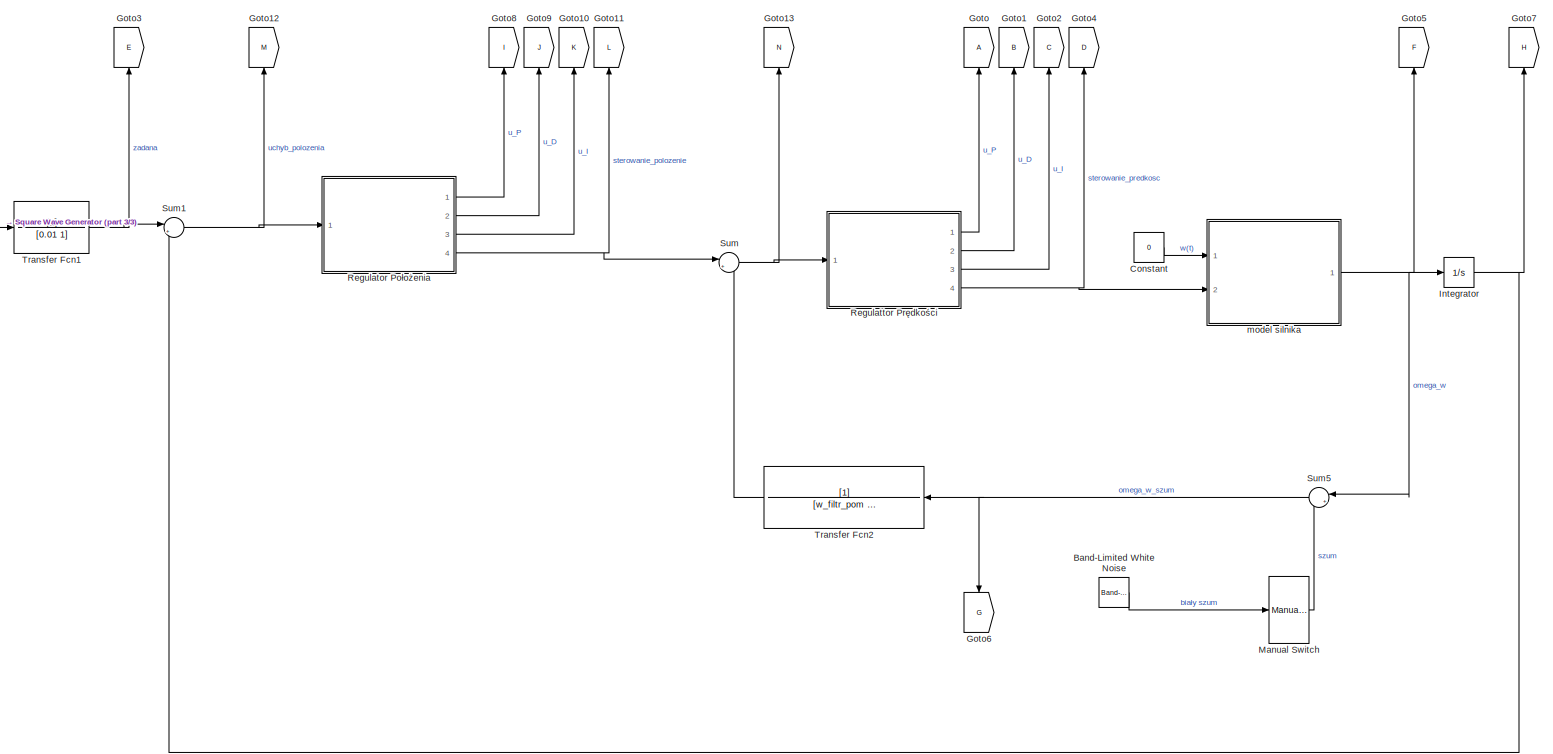
[diagram: root canvas - part 1/3, center side, full height]
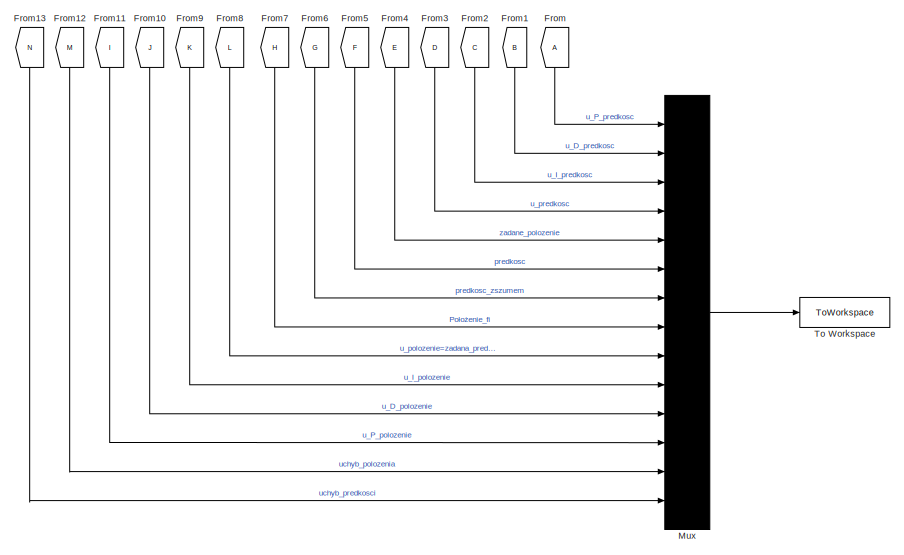
[diagram: root canvas - part 2/3, middle right region]
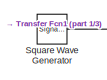
[diagram: root canvas - part 3/3, top left region]
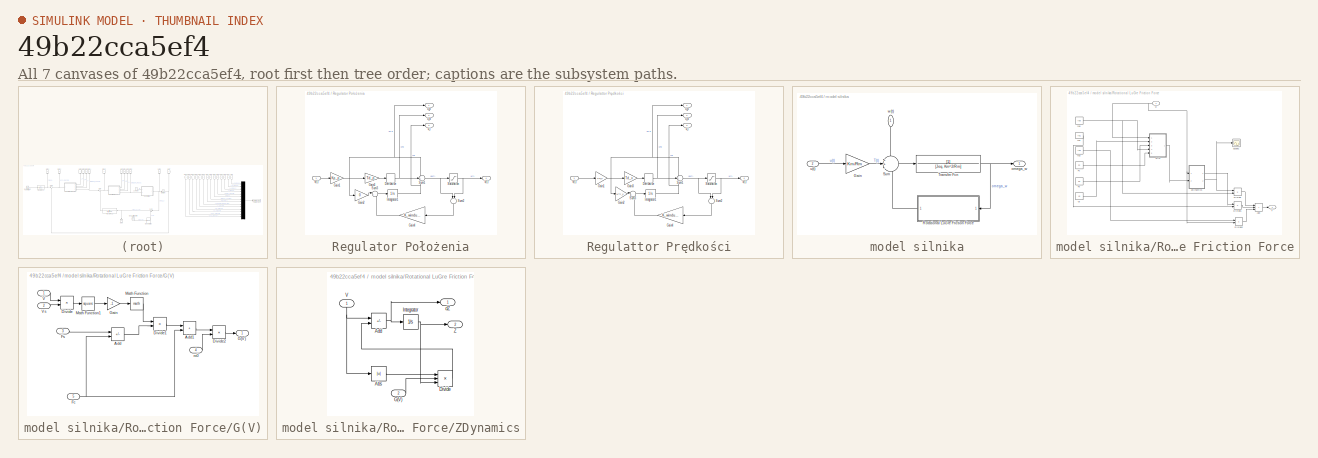
[diagram: thumbnail index - all 7 canvases of the model, root first then tree order]
MODEL slx_49b22cca5ef4
KIND model
CONFIG AbsTol = auto
CONFIG EnableMultiTasking = off
CONFIG FixedStep = auto
CONFIG MaxStep = auto
CONFIG MinStep = auto
CONFIG RelTol = 1e-3
CONFIG SampleTimeConstraint = Unconstrained
CONFIG SolverName = VariableStepAuto
CONFIG StartTime = 0.0
CONFIG StopTime = 80
BLOCK [Reference] Band-Limited White Noise  REF=simulink/Sources/Band-Limited
White Noise
  Ports = [0, 1]
  SourceBlock = simulink/Sources/Band-Limited\nWhite Noise
  SourceProductBaseCode = SL
  SourceType = Band-Limited White Noise.
BLOCK [Constant] Constant
  Value = 0
BLOCK [From] From
  NameLocation = left
BLOCK [From] From1
  GotoTag = B
  NameLocation = left
BLOCK [From] From10
  GotoTag = J
  NameLocation = left
BLOCK [From] From11
  GotoTag = I
  NameLocation = left
BLOCK [From] From12
  GotoTag = M
  NameLocation = left
BLOCK [From] From13
  GotoTag = N
  NameLocation = left
BLOCK [From] From2
  GotoTag = C
  NameLocation = left
BLOCK [From] From3
  GotoTag = D
  NameLocation = left
BLOCK [From] From4
  GotoTag = E
  NameLocation = left
BLOCK [From] From5
  GotoTag = F
  NameLocation = left
BLOCK [From] From6
  GotoTag = G
  NameLocation = left
BLOCK [From] From7
  GotoTag = H
  NameLocation = left
BLOCK [From] From8
  GotoTag = L
  NameLocation = left
BLOCK [From] From9
  GotoTag = K
  NameLocation = left
BLOCK [Goto] Goto
  NameLocation = right
BLOCK [Goto] Goto1
  GotoTag = B
  NameLocation = right
BLOCK [Goto] Goto10
  GotoTag = K
  NameLocation = right
BLOCK [Goto] Goto11
  GotoTag = L
  NameLocation = right
BLOCK [Goto] Goto12
  GotoTag = M
  NameLocation = right
BLOCK [Goto] Goto13
  GotoTag = N
  NameLocation = right
BLOCK [Goto] Goto2
  GotoTag = C
  NameLocation = right
BLOCK [Goto] Goto3
  GotoTag = E
  NameLocation = right
BLOCK [Goto] Goto4
  GotoTag = D
  NameLocation = right
BLOCK [Goto] Goto5
  GotoTag = F
  NameLocation = right
BLOCK [Goto] Goto6
  GotoTag = G
  NameLocation = left
BLOCK [Goto] Goto7
  GotoTag = H
  NameLocation = right
BLOCK [Goto] Goto8
  GotoTag = I
  NameLocation = right
BLOCK [Goto] Goto9
  GotoTag = J
  NameLocation = right
BLOCK [Integrator] Integrator
  Ports = [1, 1]
BLOCK [ManualSwitch] Manual Switch
  CurrentSetting = 0
BLOCK [Mux] Mux
  DisplayOption = bar
  Inputs = 14
  Ports = [14, 1]
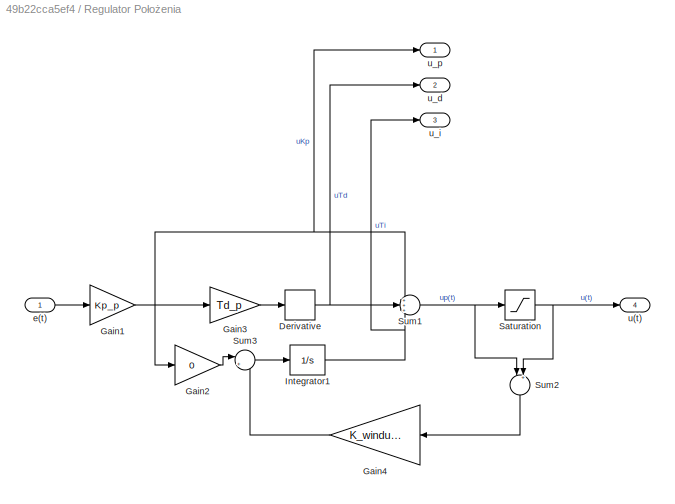
BLOCK [SubSystem] Regulator Położenia
  NameLocation = top
  Ports = [1, 4]
  RequestExecContextInheritance = off
BLOCK [Derivative] Regulator Położenia/Derivative
  CoefficientInTFapproximation = 500
BLOCK [Gain] Regulator Położenia/Gain1
  Gain = Kp_p
BLOCK [Gain] Regulator Położenia/Gain2
  Gain = 0
BLOCK [Gain] Regulator Położenia/Gain3
  Gain = Td_p
BLOCK [Gain] Regulator Położenia/Gain4
  Gain = K_windup_p
  NameLocation = top
BLOCK [Integrator] Regulator Położenia/Integrator1
  Ports = [1, 1]
BLOCK [Saturate] Regulator Położenia/Saturation
  LowerLimit = -300
  UpperLimit = 300
  ZeroCross = off
BLOCK [Sum] Regulator Położenia/Sum1
  Inputs = +++
  Ports = [3, 1]
BLOCK [Sum] Regulator Położenia/Sum2
  Inputs = |+-|
  NameLocation = left
  Ports = [2, 1]
BLOCK [Sum] Regulator Położenia/Sum3
  Inputs = |+-
  Ports = [2, 1]
BLOCK [Inport] Regulator Położenia/e(t)
BLOCK [Outport] Regulator Położenia/u(t)
  Port = 4
BLOCK [Outport] Regulator Położenia/u_d
  Port = 2
BLOCK [Outport] Regulator Położenia/u_i
  Port = 3
BLOCK [Outport] Regulator Położenia/u_p
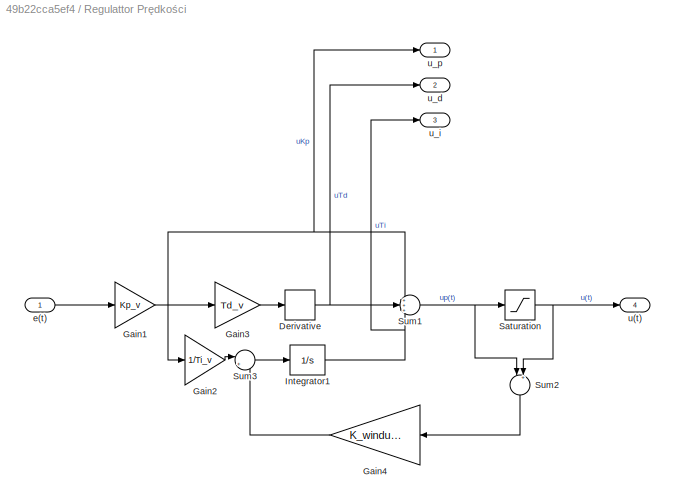
BLOCK [SubSystem] Regulattor Prędkości
  NameLocation = top
  Ports = [1, 4]
  RequestExecContextInheritance = off
BLOCK [Derivative] Regulattor Prędkości/Derivative
  CoefficientInTFapproximation = 500
BLOCK [Gain] Regulattor Prędkości/Gain1
  Gain = Kp_v
BLOCK [Gain] Regulattor Prędkości/Gain2
  Gain = 1/Ti_v
BLOCK [Gain] Regulattor Prędkości/Gain3
  Gain = Td_v
BLOCK [Gain] Regulattor Prędkości/Gain4
  Gain = K_windup_v
  NameLocation = top
BLOCK [Integrator] Regulattor Prędkości/Integrator1
  Ports = [1, 1]
BLOCK [Saturate] Regulattor Prędkości/Saturation
  LowerLimit = -10
  UpperLimit = 10
  ZeroCross = off
BLOCK [Sum] Regulattor Prędkości/Sum1
  Inputs = +++
  Ports = [3, 1]
BLOCK [Sum] Regulattor Prędkości/Sum2
  Inputs = |+-|
  NameLocation = left
  Ports = [2, 1]
BLOCK [Sum] Regulattor Prędkości/Sum3
  Inputs = |+-
  Ports = [2, 1]
BLOCK [Inport] Regulattor Prędkości/e(t)
BLOCK [Outport] Regulattor Prędkości/u(t)
  Port = 4
BLOCK [Outport] Regulattor Prędkości/u_d
  Port = 2
BLOCK [Outport] Regulattor Prędkości/u_i
  Port = 3
BLOCK [Outport] Regulattor Prędkości/u_p
BLOCK [SignalGenerator] Square Wave Generator
  Amplitude = 9
  Frequency = 0.08
  Ports = [0, 1]
  WaveForm = square
BLOCK [Sum] Sum
  Inputs = |+-
  Ports = [2, 1]
BLOCK [Sum] Sum1
  Inputs = |+-
  Ports = [2, 1]
BLOCK [Sum] Sum5
  Inputs = |++
  NameLocation = top
  Ports = [2, 1]
BLOCK [ToWorkspace] To Workspace
  FixptAsFi = on
  MaxDataPoints = inf
  Ports = [1]
  SampleTime = -1
  SaveFormat = Timeseries
  VariableName = simout
BLOCK [TransferFcn] Transfer Fcn1
  Denominator = [0.01 1]
BLOCK [TransferFcn] Transfer Fcn2
  Denominator = [w_filtr_pom 1]
  NameLocation = top
BLOCK [SubSystem] model silnika
  NameLocation = top
  Ports = [2, 1]
  RequestExecContextInheritance = off
BLOCK [Gain] model silnika/Gain
  Gain = Km/Rm
BLOCK [SubSystem] model silnika/Rotational LuGre Friction Force
  NameLocation = top
  Ports = [1, 1]
  RequestExecContextInheritance = off
  TreatAsAtomicUnit = on
BLOCK [Sum] model silnika/Rotational LuGre Friction Force/Add
  IconShape = rectangular
  Inputs = +++
  Ports = [3, 1]
BLOCK [Product] model silnika/Rotational LuGre Friction Force/Divide
  Inputs = **
  Ports = [2, 1]
BLOCK [Product] model silnika/Rotational LuGre Friction Force/Divide1
  Inputs = **
  Ports = [2, 1]
BLOCK [Product] model silnika/Rotational LuGre Friction Force/Divide2
  Inputs = **
  Ports = [2, 1]
BLOCK [Constant] model silnika/Rotational LuGre Friction Force/Fc
  Value = Fc
BLOCK [Constant] model silnika/Rotational LuGre Friction Force/Fs
  Value = Fs
BLOCK [SubSystem] model silnika/Rotational LuGre Friction Force/G(V)
  Ports = [5, 1]
  RequestExecContextInheritance = off
BLOCK [Sum] model silnika/Rotational LuGre Friction Force/G(V)/Add
  IconShape = rectangular
  Inputs = +-
  Ports = [2, 1]
BLOCK [Sum] model silnika/Rotational LuGre Friction Force/G(V)/Add1
  IconShape = rectangular
  Ports = [2, 1]
BLOCK [Product] model silnika/Rotational LuGre Friction Force/G(V)/Divide
  Inputs = */
  Ports = [2, 1]
BLOCK [Product] model silnika/Rotational LuGre Friction Force/G(V)/Divide1
  Inputs = **
  Ports = [2, 1]
BLOCK [Product] model silnika/Rotational LuGre Friction Force/G(V)/Divide2
  Inputs = */
  Ports = [2, 1]
BLOCK [Inport] model silnika/Rotational LuGre Friction Force/G(V)/Fc
  Port = 5
BLOCK [Inport] model silnika/Rotational LuGre Friction Force/G(V)/Fs
  Port = 3
BLOCK [Outport] model silnika/Rotational LuGre Friction Force/G(V)/G(V)
BLOCK [Gain] model silnika/Rotational LuGre Friction Force/G(V)/Gain
  Gain = -1
BLOCK [Math] model silnika/Rotational LuGre Friction Force/G(V)/Math Function
  Ports = [1, 1]
  SignedPower = on
BLOCK [Math] model silnika/Rotational LuGre Friction Force/G(V)/Math Function1
  Operator = square
  Ports = [1, 1]
  SignedPower = on
BLOCK [Inport] model silnika/Rotational LuGre Friction Force/G(V)/V
BLOCK [Inport] model silnika/Rotational LuGre Friction Force/G(V)/Vs
  Port = 2
BLOCK [Inport] model silnika/Rotational LuGre Friction Force/G(V)/ro0
  Port = 4
BLOCK [Scope] model silnika/Rotational LuGre Friction Force/Scope1
  Floating = off
  NumInputPorts = 1
  Ports = [1]
  ScopeSpecificationString = Simulink.scopes.TimeScopeBlockCfg('CurrentConfiguration', extmgr.ConfigurationSet(extmgr.Configuration('Core','General UI',true),extmgr.Configuration('Core','Source UI',true),extmgr.Configuration('Sources','WiredSimulink',true,'DataLoggingVariableName','ScopeData3','DataLoggingSaveFormat','StructureWithTime','DataLoggingDecimation','1','DataLoggingDecimateData',true),extmgr.Configuration('Visuals'...<+1592ch>
BLOCK [Outport] model silnika/Rotational LuGre Friction Force/T
BLOCK [Constant] model silnika/Rotational LuGre Friction Force/Vs
  Value = Vs
BLOCK [SubSystem] model silnika/Rotational LuGre Friction Force/ZDynamics
  Ports = [2, 2]
  RequestExecContextInheritance = off
BLOCK [Abs] model silnika/Rotational LuGre Friction Force/ZDynamics/Abs
  SaturateOnIntegerOverflow = off
BLOCK [Sum] model silnika/Rotational LuGre Friction Force/ZDynamics/Add
  IconShape = rectangular
  Inputs = +-
  Ports = [2, 1]
BLOCK [Product] model silnika/Rotational LuGre Friction Force/ZDynamics/Divide
  Inputs = */*
  Ports = [3, 1]
BLOCK [Inport] model silnika/Rotational LuGre Friction Force/ZDynamics/G(V)
  Port = 2
BLOCK [Integrator] model silnika/Rotational LuGre Friction Force/ZDynamics/Integrator
  Ports = [1, 1]
BLOCK [Inport] model silnika/Rotational LuGre Friction Force/ZDynamics/V
  NameLocation = right
BLOCK [Outport] model silnika/Rotational LuGre Friction Force/ZDynamics/Z
  Port = 2
BLOCK [Outport] model silnika/Rotational LuGre Friction Force/ZDynamics/dZ
BLOCK [Constant] model silnika/Rotational LuGre Friction Force/ro0
  Value = ro0
BLOCK [Constant] model silnika/Rotational LuGre Friction Force/ro1
  Value = ro1
BLOCK [Constant] model silnika/Rotational LuGre Friction Force/ro2
  Value = ro2
BLOCK [Inport] model silnika/Rotational LuGre Friction Force/w
BLOCK [Sum] model silnika/Sum
  Inputs = ++-
  Ports = [3, 1]
BLOCK [TransferFcn] model silnika/Transfer Fcn
  Denominator = [Jeq, Km^2/Rm]
BLOCK [Outport] model silnika/omega_w
BLOCK [Inport] model silnika/u(t)
  Port = 2
BLOCK [Inport] model silnika/w(t)
  NameLocation = left
LINE Band-Limited White Noise:1 -> Manual Switch:1
LINE Constant:1 -> model silnika:1
LINE From10:1 -> Mux:11
LINE From11:1 -> Mux:12
LINE From12:1 -> Mux:13
LINE From13:1 -> Mux:14
LINE From1:1 -> Mux:2
LINE From2:1 -> Mux:3
LINE From3:1 -> Mux:4
LINE From4:1 -> Mux:5
LINE From5:1 -> Mux:6
LINE From6:1 -> Mux:7
LINE From7:1 -> Mux:8
LINE From8:1 -> Mux:9
LINE From9:1 -> Mux:10
LINE From:1 -> Mux:1
NET Integrator:1 -> Goto7:1, Sum1:2
LINE Manual Switch:1 -> Sum5:2
LINE Mux:1 -> To Workspace:1
NET Regulator Położenia/Derivative:1 -> Regulator Położenia/Sum1:2, Regulator Położenia/u_d:1
NET Regulator Położenia/Gain1:1 -> Regulator Położenia/Gain2:1, Regulator Położenia/Gain3:1, Regulator Położenia/Sum1:1, Regulator Położenia/u_p:1
LINE Regulator Położenia/Gain2:1 -> Regulator Położenia/Sum3:1
LINE Regulator Położenia/Gain3:1 -> Regulator Położenia/Derivative:1
LINE Regulator Położenia/Gain4:1 -> Regulator Położenia/Sum3:2
NET Regulator Położenia/Integrator1:1 -> Regulator Położenia/Sum1:3, Regulator Położenia/u_i:1
NET Regulator Położenia/Saturation:1 -> Regulator Położenia/Sum2:2, Regulator Położenia/u(t):1
NET Regulator Położenia/Sum1:1 -> Regulator Położenia/Saturation:1, Regulator Położenia/Sum2:1
LINE Regulator Położenia/Sum2:1 -> Regulator Położenia/Gain4:1
LINE Regulator Położenia/Sum3:1 -> Regulator Położenia/Integrator1:1
LINE Regulator Położenia/e(t):1 -> Regulator Położenia/Gain1:1
LINE Regulator Położenia:1 -> Goto8:1
LINE Regulator Położenia:2 -> Goto9:1
LINE Regulator Położenia:3 -> Goto10:1
NET Regulator Położenia:4 -> Goto11:1, Sum:1
NET Regulattor Prędkości/Derivative:1 -> Regulattor Prędkości/Sum1:2, Regulattor Prędkości/u_d:1
NET Regulattor Prędkości/Gain1:1 -> Regulattor Prędkości/Gain2:1, Regulattor Prędkości/Gain3:1, Regulattor Prędkości/Sum1:1, Regulattor Prędkości/u_p:1
LINE Regulattor Prędkości/Gain2:1 -> Regulattor Prędkości/Sum3:1
LINE Regulattor Prędkości/Gain3:1 -> Regulattor Prędkości/Derivative:1
LINE Regulattor Prędkości/Gain4:1 -> Regulattor Prędkości/Sum3:2
NET Regulattor Prędkości/Integrator1:1 -> Regulattor Prędkości/Sum1:3, Regulattor Prędkości/u_i:1
NET Regulattor Prędkości/Saturation:1 -> Regulattor Prędkości/Sum2:2, Regulattor Prędkości/u(t):1
NET Regulattor Prędkości/Sum1:1 -> Regulattor Prędkości/Saturation:1, Regulattor Prędkości/Sum2:1
LINE Regulattor Prędkości/Sum2:1 -> Regulattor Prędkości/Gain4:1
LINE Regulattor Prędkości/Sum3:1 -> Regulattor Prędkości/Integrator1:1
LINE Regulattor Prędkości/e(t):1 -> Regulattor Prędkości/Gain1:1
LINE Regulattor Prędkości:1 -> Goto:1
LINE Regulattor Prędkości:2 -> Goto1:1
LINE Regulattor Prędkości:3 -> Goto2:1
NET Regulattor Prędkości:4 -> Goto4:1, model silnika:2
LINE Square Wave Generator:1 -> Transfer Fcn1:1
NET Sum1:1 -> Goto12:1, Regulator Położenia:1
NET Sum5:1 -> Goto6:1, Transfer Fcn2:1
NET Sum:1 -> Goto13:1, Regulattor Prędkości:1
NET Transfer Fcn1:1 -> Goto3:1, Sum1:1
LINE Transfer Fcn2:1 -> Sum:2
LINE model silnika/Gain:1 -> model silnika/Sum:2
LINE model silnika/Rotational LuGre Friction Force/Add:1 -> model silnika/Rotational LuGre Friction Force/T:1
LINE model silnika/Rotational LuGre Friction Force/Divide1:1 -> model silnika/Rotational LuGre Friction Force/Add:2
LINE model silnika/Rotational LuGre Friction Force/Divide2:1 -> model silnika/Rotational LuGre Friction Force/Add:3
LINE model silnika/Rotational LuGre Friction Force/Divide:1 -> model silnika/Rotational LuGre Friction Force/Add:1
LINE model silnika/Rotational LuGre Friction Force/Fc:1 -> model silnika/Rotational LuGre Friction Force/G(V):5
LINE model silnika/Rotational LuGre Friction Force/Fs:1 -> model silnika/Rotational LuGre Friction Force/G(V):3
LINE model silnika/Rotational LuGre Friction Force/G(V)/Add1:1 -> model silnika/Rotational LuGre Friction Force/G(V)/Divide2:1
LINE model silnika/Rotational LuGre Friction Force/G(V)/Add:1 -> model silnika/Rotational LuGre Friction Force/G(V)/Divide1:2
LINE model silnika/Rotational LuGre Friction Force/G(V)/Divide1:1 -> model silnika/Rotational LuGre Friction Force/G(V)/Add1:1
LINE model silnika/Rotational LuGre Friction Force/G(V)/Divide2:1 -> model silnika/Rotational LuGre Friction Force/G(V)/G(V):1
LINE model silnika/Rotational LuGre Friction Force/G(V)/Divide:1 -> model silnika/Rotational LuGre Friction Force/G(V)/Math Function1:1
NET model silnika/Rotational LuGre Friction Force/G(V)/Fc:1 -> model silnika/Rotational LuGre Friction Force/G(V)/Add1:2, model silnika/Rotational LuGre Friction Force/G(V)/Add:2
LINE model silnika/Rotational LuGre Friction Force/G(V)/Fs:1 -> model silnika/Rotational LuGre Friction Force/G(V)/Add:1
LINE model silnika/Rotational LuGre Friction Force/G(V)/Gain:1 -> model silnika/Rotational LuGre Friction Force/G(V)/Math Function:1
LINE model silnika/Rotational LuGre Friction Force/G(V)/Math Function1:1 -> model silnika/Rotational LuGre Friction Force/G(V)/Gain:1
LINE model silnika/Rotational LuGre Friction Force/G(V)/Math Function:1 -> model silnika/Rotational LuGre Friction Force/G(V)/Divide1:1
LINE model silnika/Rotational LuGre Friction Force/G(V)/V:1 -> model silnika/Rotational LuGre Friction Force/G(V)/Divide:1
LINE model silnika/Rotational LuGre Friction Force/G(V)/Vs:1 -> model silnika/Rotational LuGre Friction Force/G(V)/Divide:2
LINE model silnika/Rotational LuGre Friction Force/G(V)/ro0:1 -> model silnika/Rotational LuGre Friction Force/G(V)/Divide2:2
LINE model silnika/Rotational LuGre Friction Force/G(V):1 -> model silnika/Rotational LuGre Friction Force/ZDynamics:2
LINE model silnika/Rotational LuGre Friction Force/Vs:1 -> model silnika/Rotational LuGre Friction Force/G(V):2
LINE model silnika/Rotational LuGre Friction Force/ZDynamics/Abs:1 -> model silnika/Rotational LuGre Friction Force/ZDynamics/Divide:1
NET model silnika/Rotational LuGre Friction Force/ZDynamics/Add:1 -> model silnika/Rotational LuGre Friction Force/ZDynamics/Integrator:1, model silnika/Rotational LuGre Friction Force/ZDynamics/dZ:1
LINE model silnika/Rotational LuGre Friction Force/ZDynamics/Divide:1 -> model silnika/Rotational LuGre Friction Force/ZDynamics/Add:2
LINE model silnika/Rotational LuGre Friction Force/ZDynamics/G(V):1 -> model silnika/Rotational LuGre Friction Force/ZDynamics/Divide:2
NET model silnika/Rotational LuGre Friction Force/ZDynamics/Integrator:1 -> model silnika/Rotational LuGre Friction Force/ZDynamics/Divide:3, model silnika/Rotational LuGre Friction Force/ZDynamics/Z:1
NET model silnika/Rotational LuGre Friction Force/ZDynamics/V:1 -> model silnika/Rotational LuGre Friction Force/ZDynamics/Abs:1, model silnika/Rotational LuGre Friction Force/ZDynamics/Add:1
LINE model silnika/Rotational LuGre Friction Force/ZDynamics:1 -> model silnika/Rotational LuGre Friction Force/Divide1:1
NET model silnika/Rotational LuGre Friction Force/ZDynamics:2 -> model silnika/Rotational LuGre Friction Force/Divide:1, model silnika/Rotational LuGre Friction Force/Scope1:1
NET model silnika/Rotational LuGre Friction Force/ro0:1 -> model silnika/Rotational LuGre Friction Force/Divide:2, model silnika/Rotational LuGre Friction Force/G(V):4
LINE model silnika/Rotational LuGre Friction Force/ro1:1 -> model silnika/Rotational LuGre Friction Force/Divide1:2
LINE model silnika/Rotational LuGre Friction Force/ro2:1 -> model silnika/Rotational LuGre Friction Force/Divide2:1
NET model silnika/Rotational LuGre Friction Force/w:1 -> model silnika/Rotational LuGre Friction Force/Divide2:2, model silnika/Rotational LuGre Friction Force/G(V):1, model silnika/Rotational LuGre Friction Force/ZDynamics:1
LINE model silnika/Rotational LuGre Friction Force:1 -> model silnika/Sum:3
LINE model silnika/Sum:1 -> model silnika/Transfer Fcn:1
NET model silnika/Transfer Fcn:1 -> model silnika/Rotational LuGre Friction Force:1, model silnika/omega_w:1
LINE model silnika/u(t):1 -> model silnika/Gain:1
LINE model silnika/w(t):1 -> model silnika/Sum:1
NET model silnika:1 -> Goto5:1, Integrator:1, Sum5:1
note: NET lines group one-source signal fan-out (src -> all destinations, sorted); 1:1 wires keep LINE
